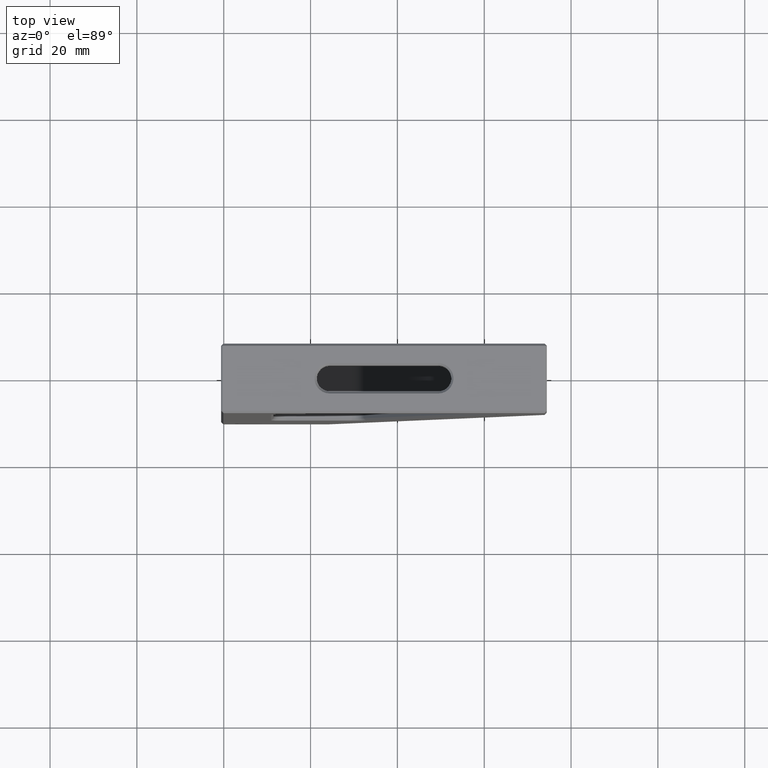
[diagram: clean part render]
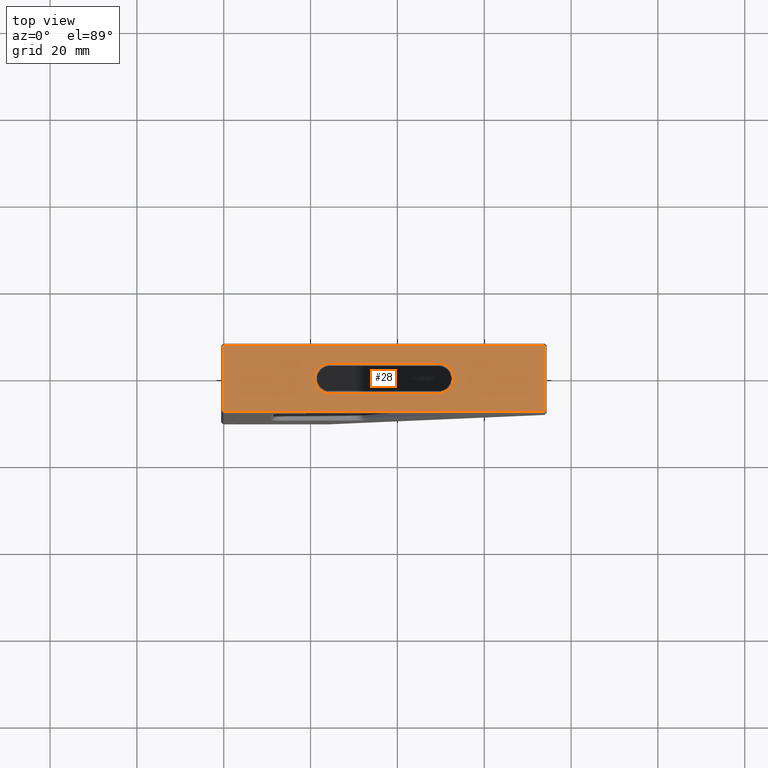
[diagram: same view with one face highlighted and labeled with its STEP entity id]
A machine part, top view. The second image highlights one B-rep face of the part: STEP entity #28.
In plain terms, the highlighted planar face has unit normal (0, 0, -1).
Its self-contained STEP definition (entity closure, byte-faithful):
#19 = LINE ( 'NONE', #1483, #2698 ) ;
#28 = ADVANCED_FACE ( 'NONE', ( #2548, #742 ), #2811, .F. ) ;
#46 = VECTOR ( 'NONE', #1124, 1000.000000000000000 ) ;
#101 = AXIS2_PLACEMENT_3D ( 'NONE', #591, #2364, #2044 ) ;
#231 = DIRECTION ( 'NONE',  ( 0.000000000000000000, 1.000000000000000000, 0.000000000000000000 ) ) ;
#245 = ORIENTED_EDGE ( 'NONE', *, *, #1632, .F. ) ;
#256 = VECTOR ( 'NONE', #2348, 1000.000000000000000 ) ;
#379 = CARTESIAN_POINT ( 'NONE',  ( 9.412949721938485226, 1.416241062312336485, 224.9999999999623412 ) ) ;
#382 = CARTESIAN_POINT ( 'NONE',  ( -15.58705027806149523, -2.083758937690479929, 224.9999999998906333 ) ) ;
#394 = AXIS2_PLACEMENT_3D ( 'NONE', #1749, #2741, #1062 ) ;
#516 = EDGE_LOOP ( 'NONE', ( #2027, #1076, #2103, #973 ) ) ;
#529 = VERTEX_POINT ( 'NONE', #3194 ) ;
#539 = VERTEX_POINT ( 'NONE', #941 ) ;
#575 = DIRECTION ( 'NONE',  ( 0.000000000000000000, -0.000000000000000000, 1.000000000000000000 ) ) ;
#577 = LINE ( 'NONE', #669, #1435 ) ;
#587 = DIRECTION ( 'NONE',  ( -1.000000000000000000, 0.000000000000000000, -0.000000000000000000 ) ) ;
#591 = CARTESIAN_POINT ( 'NONE',  ( 9.412949721938485226, -2.083758937690474600, 224.9999999999133422 ) ) ;
#605 = ORIENTED_EDGE ( 'NONE', *, *, #2261, .F. ) ;
#669 = CARTESIAN_POINT ( 'NONE',  ( -40.58705027806149701, -5.583758937690499025, 224.9999999999999716 ) ) ;
#742 = FACE_BOUND ( 'NONE', #2692, .T. ) ;
#838 = CARTESIAN_POINT ( 'NONE',  ( -15.58705027806149701, 1.416241062326544675, 224.9999999999225793 ) ) ;
#930 = DIRECTION ( 'NONE',  ( 1.000000000000000000, -0.000000000000000000, 0.000000000000000000 ) ) ;
#941 = CARTESIAN_POINT ( 'NONE',  ( -15.58705027806149523, -5.583758937635820985, 224.9999999999452882 ) ) ;
#973 = ORIENTED_EDGE ( 'NONE', *, *, #1383, .F. ) ;
#1058 = CARTESIAN_POINT ( 'NONE',  ( -40.58705027806149701, 1.416241062309544274, 224.9999999999999716 ) ) ;
#1062 = DIRECTION ( 'NONE',  ( -1.000000000000000000, 0.000000000000000000, -0.000000000000000000 ) ) ;
#1066 = LINE ( 'NONE', #3088, #1325 ) ;
#1074 = DIRECTION ( 'NONE',  ( -1.000000000000000000, 0.000000000000000000, -0.000000000000000000 ) ) ;
#1076 = ORIENTED_EDGE ( 'NONE', *, *, #2856, .F. ) ;
#1085 = LINE ( 'NONE', #3125, #46 ) ;
#1124 = DIRECTION ( 'NONE',  ( 1.000000000000000000, 0.000000000000000000, -0.000000000000000000 ) ) ;
#1261 = CIRCLE ( 'NONE', #101, 3.499999999974079401 ) ;
#1271 = ORIENTED_EDGE ( 'NONE', *, *, #2321, .F. ) ;
#1324 = VERTEX_POINT ( 'NONE', #2010 ) ;
#1325 = VECTOR ( 'NONE', #587, 1000.000000000000000 ) ;
#1370 = DIRECTION ( 'NONE',  ( 1.000000000000000000, 0.000000000000000000, 0.000000000000000000 ) ) ;
#1371 = VERTEX_POINT ( 'NONE', #2221 ) ;
#1383 = EDGE_CURVE ( 'NONE', #2196, #529, #19, .T. ) ;
#1435 = VECTOR ( 'NONE', #930, 1000.000000000000000 ) ;
#1483 = CARTESIAN_POINT ( 'NONE',  ( -40.08705027806149701, 5.916241062309521404, 224.9999999999999716 ) ) ;
#1485 = VECTOR ( 'NONE', #1074, 1000.000000000000000 ) ;
#1532 = LINE ( 'NONE', #1058, #1485 ) ;
#1537 = EDGE_CURVE ( 'NONE', #2344, #2196, #1066, .T. ) ;
#1574 = VERTEX_POINT ( 'NONE', #838 ) ;
#1632 = EDGE_CURVE ( 'NONE', #1574, #539, #3215, .T. ) ;
#1749 = CARTESIAN_POINT ( 'NONE',  ( -40.58705027806149701, 5.916241062309521404, 224.9999999999999716 ) ) ;
#1809 = CARTESIAN_POINT ( 'NONE',  ( 33.91294972193851720, 5.916241062309521404, 224.9999999999999716 ) ) ;
#1934 = CARTESIAN_POINT ( 'NONE',  ( 33.91294972193851720, -9.583758937690465274, 224.9999999999999716 ) ) ;
#2009 = AXIS2_PLACEMENT_3D ( 'NONE', #382, #575, #1370 ) ;
#2010 = CARTESIAN_POINT ( 'NONE',  ( 9.412949721938485226, -5.583758937649105469, 224.9999999999133422 ) ) ;
#2027 = ORIENTED_EDGE ( 'NONE', *, *, #1537, .F. ) ;
#2044 = DIRECTION ( 'NONE',  ( 1.000000000000000000, 0.000000000000000000, 0.000000000000000000 ) ) ;
#2103 = ORIENTED_EDGE ( 'NONE', *, *, #2756, .F. ) ;
#2196 = VERTEX_POINT ( 'NONE', #3098 ) ;
#2221 = CARTESIAN_POINT ( 'NONE',  ( 33.91294972193851720, 5.416241062309548937, 224.9999999999999716 ) ) ;
#2261 = EDGE_CURVE ( 'NONE', #3023, #1574, #1532, .T. ) ;
#2321 = EDGE_CURVE ( 'NONE', #539, #1324, #577, .T. ) ;
#2344 = VERTEX_POINT ( 'NONE', #1934 ) ;
#2348 = DIRECTION ( 'NONE',  ( -0.000000000000000000, -1.000000000000000000, -0.000000000000000000 ) ) ;
#2364 = DIRECTION ( 'NONE',  ( 0.000000000000000000, 0.000000000000000000, 1.000000000000000000 ) ) ;
#2548 = FACE_OUTER_BOUND ( 'NONE', #516, .T. ) ;
#2692 = EDGE_LOOP ( 'NONE', ( #2877, #1271, #245, #605 ) ) ;
#2698 = VECTOR ( 'NONE', #231, 1000.000000000000000 ) ;
#2741 = DIRECTION ( 'NONE',  ( 0.000000000000000000, 0.000000000000000000, -1.000000000000000000 ) ) ;
#2756 = EDGE_CURVE ( 'NONE', #529, #1371, #1085, .T. ) ;
#2811 = PLANE ( 'NONE',  #394 ) ;
#2856 = EDGE_CURVE ( 'NONE', #1371, #2344, #3056, .T. ) ;
#2859 = EDGE_CURVE ( 'NONE', #1324, #3023, #1261, .T. ) ;
#2877 = ORIENTED_EDGE ( 'NONE', *, *, #2859, .F. ) ;
#3023 = VERTEX_POINT ( 'NONE', #379 ) ;
#3056 = LINE ( 'NONE', #1809, #256 ) ;
#3088 = CARTESIAN_POINT ( 'NONE',  ( -40.58705027806149701, -9.583758937690465274, 224.9999999999999716 ) ) ;
#3098 = CARTESIAN_POINT ( 'NONE',  ( -40.08705027806149701, -9.583758937690465274, 224.9999999999999716 ) ) ;
#3125 = CARTESIAN_POINT ( 'NONE',  ( -3.087050278061505892, 5.416241062309548937, 224.9999999999999716 ) ) ;
#3194 = CARTESIAN_POINT ( 'NONE',  ( -40.08705027806152543, 5.416241062315873656, 225.0000000000025864 ) ) ;
#3215 = CIRCLE ( 'NONE', #2009, 3.499999999974079401 ) ;